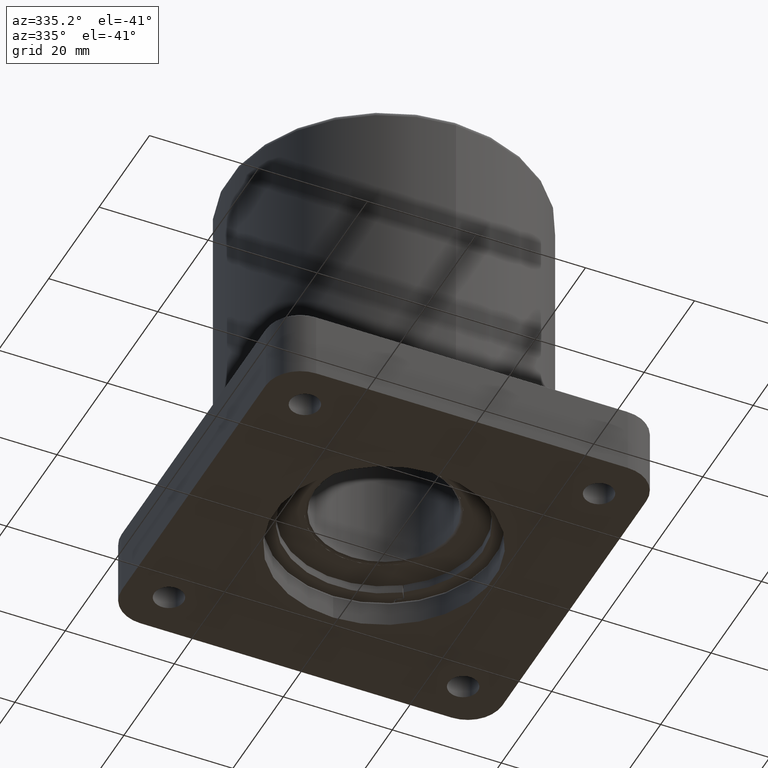
[diagram: clean part render]
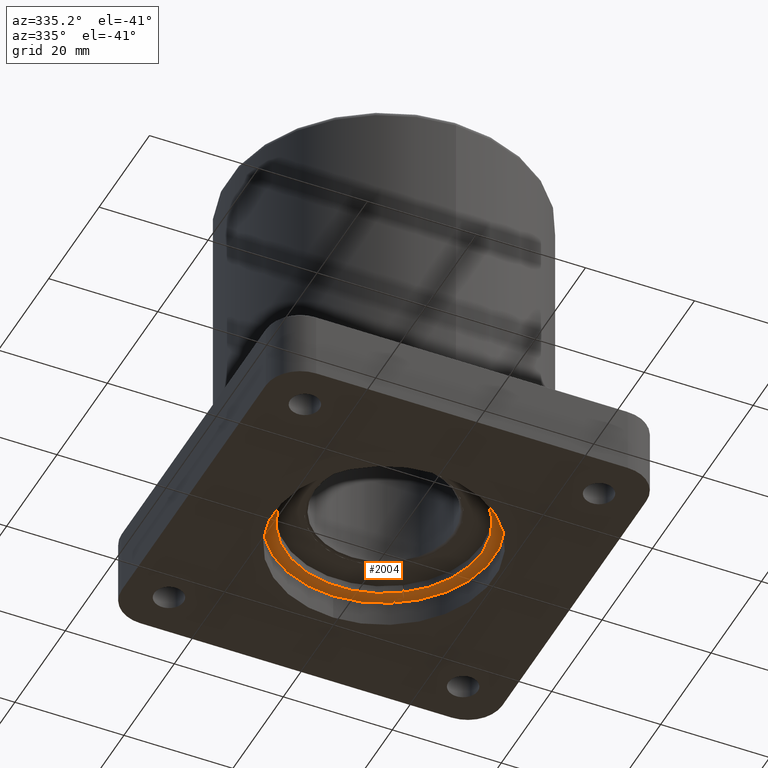
[diagram: same view with one face highlighted and labeled with its STEP entity id]
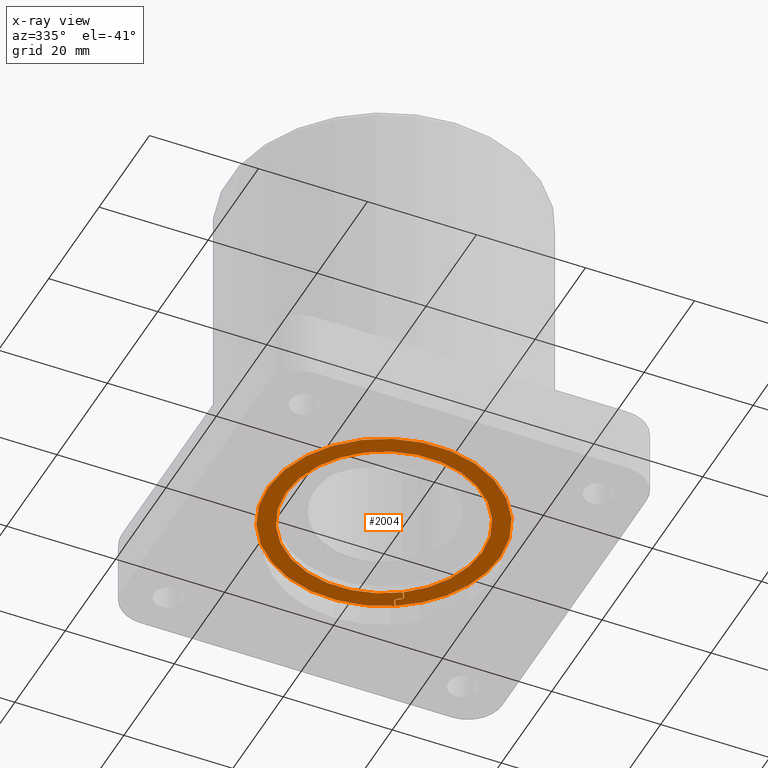
[diagram: x-ray of the same camera — body ghosted, the highlighted face saturated]
A machine part, auxiliary view. The second image highlights one B-rep face of the part: STEP entity #2004.
The next image is the same camera in x-ray: the body ghosted, the highlighted face saturated — about 0% of this face is hidden behind the body in this view.
In plain terms, the highlighted planar face has unit normal (0, 0, 1).
Its self-contained STEP definition (entity closure, byte-faithful):
#31 = CIRCLE ( 'NONE', #4510, 0.8375000000000000222 ) ;
#69 = DIRECTION ( 'NONE',  ( 0.000000000000000000, 0.000000000000000000, 1.000000000000000000 ) ) ;
#109 = VERTEX_POINT ( 'NONE', #1882 ) ;
#152 = AXIS2_PLACEMENT_3D ( 'NONE', #6194, #1017, #8096 ) ;
#224 = CARTESIAN_POINT ( 'NONE',  ( 0.4271788321566135083, 0.6218954412131872944, 0.2000000000000005940 ) ) ;
#269 = CIRCLE ( 'NONE', #7744, 0.02133333333333346446 ) ;
#329 = DIRECTION ( 'NONE',  ( 0.4999999999999960032, 0.8660254037844409281, 0.000000000000000000 ) ) ;
#389 = AXIS2_PLACEMENT_3D ( 'NONE', #4798, #1638, #5383 ) ;
#488 = CARTESIAN_POINT ( 'NONE',  ( 0.4237004172281344516, 0.6485373164939218782, 0.2000000000000005940 ) ) ;
#540 = CIRCLE ( 'NONE', #7494, 0.7095000000000000195 ) ;
#562 = DIRECTION ( 'NONE',  ( 0.000000000000000000, 0.000000000000000000, 1.000000000000000000 ) ) ;
#602 = ORIENTED_EDGE ( 'NONE', *, *, #7980, .T. ) ;
#631 = VERTEX_POINT ( 'NONE', #488 ) ;
#689 = EDGE_CURVE ( 'NONE', #631, #2444, #6381, .T. ) ;
#790 = CIRCLE ( 'NONE', #3141, 0.02633333333333334400 ) ;
#797 = CARTESIAN_POINT ( 'NONE',  ( 0.4052252086140662457, 0.6592039831605885913, 0.2000000000000005940 ) ) ;
#829 = ORIENTED_EDGE ( 'NONE', *, *, #1981, .T. ) ;
#830 = DIRECTION ( 'NONE',  ( 0.8660254037844368202, -0.5000000000000029976, 0.000000000000000000 ) ) ;
#891 = CARTESIAN_POINT ( 'NONE',  ( 0.4212004172281343384, 0.6442071894749995531, 0.2000000000000005940 ) ) ;
#893 = ORIENTED_EDGE ( 'NONE', *, *, #3619, .T. ) ;
#1016 = CARTESIAN_POINT ( 'NONE',  ( 0.4271788321566133972, 0.6218954412131872944, 0.2000000000000005940 ) ) ;
#1017 = DIRECTION ( 'NONE',  ( -0.000000000000000000, -0.000000000000000000, -1.000000000000000000 ) ) ;
#1022 = ORIENTED_EDGE ( 'NONE', *, *, #7450, .T. ) ;
#1069 = VECTOR ( 'NONE', #1445, 39.37007874015748854 ) ;
#1090 = VERTEX_POINT ( 'NONE', #3152 ) ;
#1092 = LINE ( 'NONE', #3449, #3212 ) ;
#1094 = ORIENTED_EDGE ( 'NONE', *, *, #5214, .T. ) ;
#1323 = DIRECTION ( 'NONE',  ( 1.000000000000000000, 0.000000000000000000, -0.000000000000000000 ) ) ;
#1379 = DIRECTION ( 'NONE',  ( 1.000000000000000000, 0.000000000000000000, 0.000000000000000000 ) ) ;
#1410 = CARTESIAN_POINT ( 'NONE',  ( 0.4144124102280097866, 0.7277833498019848912, 0.2000000000000005940 ) ) ;
#1415 = VERTEX_POINT ( 'NONE', #1844 ) ;
#1443 = PLANE ( 'NONE',  #2581 ) ;
#1445 = DIRECTION ( 'NONE',  ( -0.8660254037844368202, 0.5000000000000029976, -0.000000000000000000 ) ) ;
#1634 = AXIS2_PLACEMENT_3D ( 'NONE', #7129, #6437, #1379 ) ;
#1638 = DIRECTION ( 'NONE',  ( 0.000000000000000000, 0.000000000000000000, 1.000000000000000000 ) ) ;
#1659 = CARTESIAN_POINT ( 'NONE',  ( 0.4087294080183915268, 0.5799401012353987417, 0.2000000000000005940 ) ) ;
#1733 = ORIENTED_EDGE ( 'NONE', *, *, #6679, .T. ) ;
#1801 = ORIENTED_EDGE ( 'NONE', *, *, #7573, .F. ) ;
#1844 = CARTESIAN_POINT ( 'NONE',  ( 0.4315089591755358889, 0.6193954412131870146, 0.2000000000000005940 ) ) ;
#1882 = CARTESIAN_POINT ( 'NONE',  ( 0.3930865396477427054, 0.6908458584413229575, 0.2000000000000005940 ) ) ;
#1931 = CARTESIAN_POINT ( 'NONE',  ( -5.148333495987217962E-31, -9.228208374337197904E-15, 0.2000000000000005940 ) ) ;
#1981 = EDGE_CURVE ( 'NONE', #3160, #2602, #3769, .T. ) ;
#2004 = ADVANCED_FACE ( 'NONE', ( #7788 ), #1443, .F. ) ;
#2018 = VECTOR ( 'NONE', #4913, 39.37007874015748854 ) ;
#2050 = CARTESIAN_POINT ( 'NONE',  ( 0.4343670838948011093, 0.6300621078798539498, 0.2000000000000005940 ) ) ;
#2069 = EDGE_CURVE ( 'NONE', #7566, #4617, #2950, .T. ) ;
#2101 = CARTESIAN_POINT ( 'NONE',  ( -5.148333495987217962E-31, -9.228208374337197904E-15, 0.2000000000000005940 ) ) ;
#2144 = DIRECTION ( 'NONE',  ( 0.000000000000000000, 0.000000000000000000, 1.000000000000000000 ) ) ;
#2229 = EDGE_CURVE ( 'NONE', #4112, #3684, #5763, .T. ) ;
#2277 = CARTESIAN_POINT ( 'NONE',  ( 0.4130337505614676274, 0.6300621078798539498, 0.2000000000000005940 ) ) ;
#2278 = CARTESIAN_POINT ( 'NONE',  ( -5.148333495987217962E-31, -9.228208374337197904E-15, 0.2000000000000005940 ) ) ;
#2323 = VECTOR ( 'NONE', #830, 39.37007874015748854 ) ;
#2444 = VERTEX_POINT ( 'NONE', #3618 ) ;
#2453 = AXIS2_PLACEMENT_3D ( 'NONE', #6253, #562, #3050 ) ;
#2517 = ORIENTED_EDGE ( 'NONE', *, *, #2229, .T. ) ;
#2581 = AXIS2_PLACEMENT_3D ( 'NONE', #5775, #2689, #1323 ) ;
#2602 = VERTEX_POINT ( 'NONE', #1659 ) ;
#2689 = DIRECTION ( 'NONE',  ( 0.000000000000000000, 0.000000000000000000, 1.000000000000000000 ) ) ;
#2738 = CARTESIAN_POINT ( 'NONE',  ( 0.4158918752807330144, 0.6776791917746566307, 0.2000000000000005940 ) ) ;
#2855 = ORIENTED_EDGE ( 'NONE', *, *, #4072, .T. ) ;
#2950 = CIRCLE ( 'NONE', #4032, 0.8375000000000000222 ) ;
#2975 = EDGE_CURVE ( 'NONE', #7295, #4458, #31, .T. ) ;
#2983 = CARTESIAN_POINT ( 'NONE',  ( 0.8375000000000000222, -9.125644204908606271E-15, 0.2000000000000005940 ) ) ;
#3019 = CARTESIAN_POINT ( 'NONE',  ( 0.4046168029903700614, 0.5828168603754023680, 0.2000000000000005940 ) ) ;
#3050 = DIRECTION ( 'NONE',  ( 1.000000000000000000, 0.000000000000000000, 0.000000000000000000 ) ) ;
#3065 = LINE ( 'NONE', #6828, #2018 ) ;
#3135 = AXIS2_PLACEMENT_3D ( 'NONE', #2738, #7878, #6640 ) ;
#3141 = AXIS2_PLACEMENT_3D ( 'NONE', #7281, #5902, #4603 ) ;
#3152 = CARTESIAN_POINT ( 'NONE',  ( 0.4293670838948008828, 0.6300621078798539498, 0.2000000000000005940 ) ) ;
#3160 = VERTEX_POINT ( 'NONE', #8143 ) ;
#3180 = EDGE_CURVE ( 'NONE', #1090, #7527, #5707, .T. ) ;
#3212 = VECTOR ( 'NONE', #6183, 39.37007874015748854 ) ;
#3253 = ORIENTED_EDGE ( 'NONE', *, *, #2069, .F. ) ;
#3321 = VERTEX_POINT ( 'NONE', #5675 ) ;
#3449 = CARTESIAN_POINT ( 'NONE',  ( 0.3930865396477427054, 0.6908458584413229575, 0.2000000000000005940 ) ) ;
#3615 = EDGE_LOOP ( 'NONE', ( #893, #5830, #3253, #1801, #4234, #1094, #5090, #2517, #7352, #6616, #1022, #2855, #602, #829, #7960, #8089, #1733, #6128 ) ) ;
#3618 = CARTESIAN_POINT ( 'NONE',  ( 0.4052252086140662457, 0.6592039831605885913, 0.2000000000000005940 ) ) ;
#3619 = EDGE_CURVE ( 'NONE', #2444, #4935, #5957, .T. ) ;
#3683 = CIRCLE ( 'NONE', #5964, 0.7095000000000000195 ) ;
#3684 = VERTEX_POINT ( 'NONE', #891 ) ;
#3769 = CIRCLE ( 'NONE', #2453, 0.7095000000000000195 ) ;
#3889 = CARTESIAN_POINT ( 'NONE',  ( 0.4130337505614676274, 0.6300621078798539498, 0.2000000000000005940 ) ) ;
#3929 = DIRECTION ( 'NONE',  ( 1.000000000000000000, 0.000000000000000000, 0.000000000000000000 ) ) ;
#3972 = LINE ( 'NONE', #224, #6359 ) ;
#4013 = DIRECTION ( 'NONE',  ( 0.000000000000000000, 0.000000000000000000, 1.000000000000000000 ) ) ;
#4032 = AXIS2_PLACEMENT_3D ( 'NONE', #1931, #69, #5267 ) ;
#4072 = EDGE_CURVE ( 'NONE', #7914, #3321, #540, .T. ) ;
#4088 = CIRCLE ( 'NONE', #5156, 0.02133333333333346446 ) ;
#4112 = VERTEX_POINT ( 'NONE', #4849 ) ;
#4203 = CIRCLE ( 'NONE', #389, 0.8375000000000000222 ) ;
#4229 = DIRECTION ( 'NONE',  ( 0.000000000000000000, 0.000000000000000000, 1.000000000000000000 ) ) ;
#4234 = ORIENTED_EDGE ( 'NONE', *, *, #2975, .F. ) ;
#4288 = CARTESIAN_POINT ( 'NONE',  ( 0.4187499999999979572, 0.7252962756694593116, 0.2000000000000005940 ) ) ;
#4458 = VERTEX_POINT ( 'NONE', #6699 ) ;
#4504 = EDGE_CURVE ( 'NONE', #2602, #1415, #3065, .T. ) ;
#4510 = AXIS2_PLACEMENT_3D ( 'NONE', #2101, #4013, #3929 ) ;
#4519 = DIRECTION ( 'NONE',  ( 1.000000000000000000, 0.000000000000000000, 0.000000000000000000 ) ) ;
#4603 = DIRECTION ( 'NONE',  ( -1.000000000000000000, 0.000000000000000000, 0.000000000000000000 ) ) ;
#4617 = VERTEX_POINT ( 'NONE', #4288 ) ;
#4798 = CARTESIAN_POINT ( 'NONE',  ( -5.148333495987217962E-31, -9.228208374337197904E-15, 0.2000000000000005940 ) ) ;
#4849 = CARTESIAN_POINT ( 'NONE',  ( 0.4027252086140662435, 0.6548738561416664883, 0.2000000000000005940 ) ) ;
#4865 = CARTESIAN_POINT ( 'NONE',  ( 0.3974166666666647529, 0.6883458584413231218, 0.2000000000000005940 ) ) ;
#4913 = DIRECTION ( 'NONE',  ( 0.4999999999999993894, 0.8660254037844390407, -0.000000000000000000 ) ) ;
#4935 = VERTEX_POINT ( 'NONE', #8098 ) ;
#4990 = CARTESIAN_POINT ( 'NONE',  ( -5.148333495987217962E-31, -9.228208374337197904E-15, 0.2000000000000005940 ) ) ;
#5090 = ORIENTED_EDGE ( 'NONE', *, *, #6593, .T. ) ;
#5156 = AXIS2_PLACEMENT_3D ( 'NONE', #3889, #2144, #4519 ) ;
#5202 = EDGE_CURVE ( 'NONE', #4935, #4617, #5463, .T. ) ;
#5214 = EDGE_CURVE ( 'NONE', #7295, #109, #1092, .T. ) ;
#5261 = DIRECTION ( 'NONE',  ( -0.4999999999999963918, -0.8660254037844405950, 0.000000000000000000 ) ) ;
#5267 = DIRECTION ( 'NONE',  ( 1.000000000000000000, 0.000000000000000000, 0.000000000000000000 ) ) ;
#5353 = EDGE_CURVE ( 'NONE', #3684, #1090, #7135, .T. ) ;
#5383 = DIRECTION ( 'NONE',  ( 1.000000000000000000, 0.000000000000000000, 0.000000000000000000 ) ) ;
#5463 = LINE ( 'NONE', #4865, #5754 ) ;
#5675 = CARTESIAN_POINT ( 'NONE',  ( -0.7095000000000000195, -9.228208374337197904E-15, 0.2000000000000005940 ) ) ;
#5707 = CIRCLE ( 'NONE', #152, 0.01633333333333324491 ) ;
#5754 = VECTOR ( 'NONE', #329, 39.37007874015748143 ) ;
#5763 = LINE ( 'NONE', #7732, #2323 ) ;
#5775 = CARTESIAN_POINT ( 'NONE',  ( -5.148333495987217962E-31, -9.228208374337197904E-15, 0.2000000000000005940 ) ) ;
#5827 = DIRECTION ( 'NONE',  ( 1.000000000000000000, 0.000000000000000000, 0.000000000000000000 ) ) ;
#5830 = ORIENTED_EDGE ( 'NONE', *, *, #5202, .T. ) ;
#5902 = DIRECTION ( 'NONE',  ( 0.000000000000000000, 0.000000000000000000, 1.000000000000000000 ) ) ;
#5957 = CIRCLE ( 'NONE', #3135, 0.02133333333333339854 ) ;
#5964 = AXIS2_PLACEMENT_3D ( 'NONE', #4990, #7596, #5827 ) ;
#6059 = VERTEX_POINT ( 'NONE', #2050 ) ;
#6128 = ORIENTED_EDGE ( 'NONE', *, *, #689, .T. ) ;
#6183 = DIRECTION ( 'NONE',  ( -0.4999999999999910627, -0.8660254037844437036, -0.000000000000000000 ) ) ;
#6194 = CARTESIAN_POINT ( 'NONE',  ( 0.4130337505614676274, 0.6300621078798539498, 0.2000000000000005940 ) ) ;
#6253 = CARTESIAN_POINT ( 'NONE',  ( -5.148333495987217962E-31, -9.228208374337197904E-15, 0.2000000000000005940 ) ) ;
#6359 = VECTOR ( 'NONE', #5261, 39.37007874015748854 ) ;
#6381 = LINE ( 'NONE', #797, #1069 ) ;
#6437 = DIRECTION ( 'NONE',  ( -0.000000000000000000, -0.000000000000000000, -1.000000000000000000 ) ) ;
#6593 = EDGE_CURVE ( 'NONE', #109, #4112, #790, .T. ) ;
#6616 = ORIENTED_EDGE ( 'NONE', *, *, #3180, .T. ) ;
#6640 = DIRECTION ( 'NONE',  ( -1.000000000000000000, 0.000000000000000000, 0.000000000000000000 ) ) ;
#6679 = EDGE_CURVE ( 'NONE', #6059, #631, #269, .T. ) ;
#6699 = CARTESIAN_POINT ( 'NONE',  ( -0.8375000000000000222, -9.228208374337197904E-15, 0.2000000000000005940 ) ) ;
#6828 = CARTESIAN_POINT ( 'NONE',  ( 0.4315089591755358889, 0.6193954412131870146, 0.2000000000000005940 ) ) ;
#6851 = EDGE_CURVE ( 'NONE', #1415, #6059, #4088, .T. ) ;
#7129 = CARTESIAN_POINT ( 'NONE',  ( 0.4130337505614676274, 0.6300621078798539498, 0.2000000000000005940 ) ) ;
#7135 = CIRCLE ( 'NONE', #1634, 0.01633333333333324491 ) ;
#7281 = CARTESIAN_POINT ( 'NONE',  ( 0.4158918752807330144, 0.6776791917746566307, 0.2000000000000005940 ) ) ;
#7295 = VERTEX_POINT ( 'NONE', #1410 ) ;
#7321 = DIRECTION ( 'NONE',  ( 1.000000000000000000, 0.000000000000000000, 0.000000000000000000 ) ) ;
#7352 = ORIENTED_EDGE ( 'NONE', *, *, #5353, .T. ) ;
#7372 = DIRECTION ( 'NONE',  ( 1.000000000000000000, 0.000000000000000000, 0.000000000000000000 ) ) ;
#7450 = EDGE_CURVE ( 'NONE', #7527, #7914, #3972, .T. ) ;
#7494 = AXIS2_PLACEMENT_3D ( 'NONE', #2278, #4229, #7372 ) ;
#7527 = VERTEX_POINT ( 'NONE', #1016 ) ;
#7566 = VERTEX_POINT ( 'NONE', #2983 ) ;
#7573 = EDGE_CURVE ( 'NONE', #4458, #7566, #4203, .T. ) ;
#7596 = DIRECTION ( 'NONE',  ( 0.000000000000000000, 0.000000000000000000, 1.000000000000000000 ) ) ;
#7732 = CARTESIAN_POINT ( 'NONE',  ( 0.4027252086140661880, 0.6548738561416663773, 0.2000000000000005940 ) ) ;
#7744 = AXIS2_PLACEMENT_3D ( 'NONE', #2277, #8105, #7321 ) ;
#7788 = FACE_OUTER_BOUND ( 'NONE', #3615, .T. ) ;
#7878 = DIRECTION ( 'NONE',  ( -0.000000000000000000, -0.000000000000000000, -1.000000000000000000 ) ) ;
#7914 = VERTEX_POINT ( 'NONE', #3019 ) ;
#7960 = ORIENTED_EDGE ( 'NONE', *, *, #4504, .T. ) ;
#7980 = EDGE_CURVE ( 'NONE', #3321, #3160, #3683, .T. ) ;
#8089 = ORIENTED_EDGE ( 'NONE', *, *, #6851, .T. ) ;
#8096 = DIRECTION ( 'NONE',  ( 1.000000000000000000, 0.000000000000000000, 0.000000000000000000 ) ) ;
#8098 = CARTESIAN_POINT ( 'NONE',  ( 0.3974166666666647529, 0.6883458584413231218, 0.2000000000000005940 ) ) ;
#8105 = DIRECTION ( 'NONE',  ( 0.000000000000000000, 0.000000000000000000, 1.000000000000000000 ) ) ;
#8143 = CARTESIAN_POINT ( 'NONE',  ( 0.7095000000000000195, -9.141319683937692358E-15, 0.2000000000000005940 ) ) ;